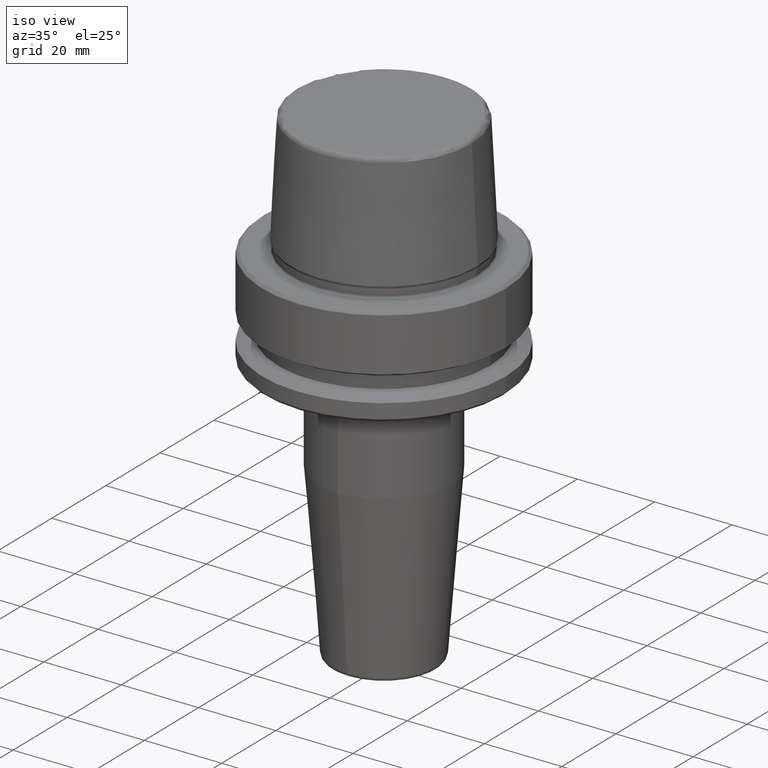
[diagram: clean part render]
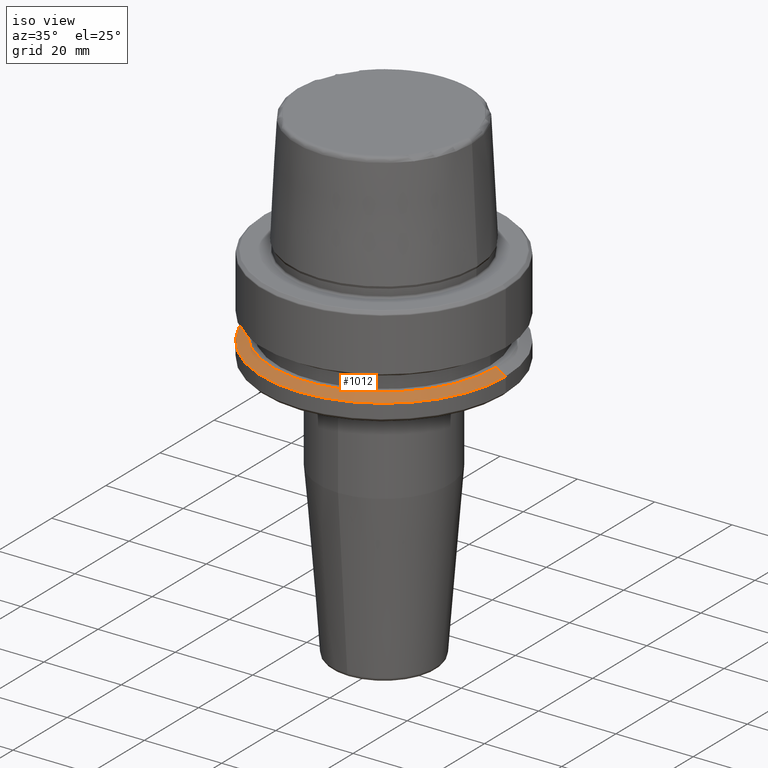
[diagram: same view with one face highlighted and labeled with its STEP entity id]
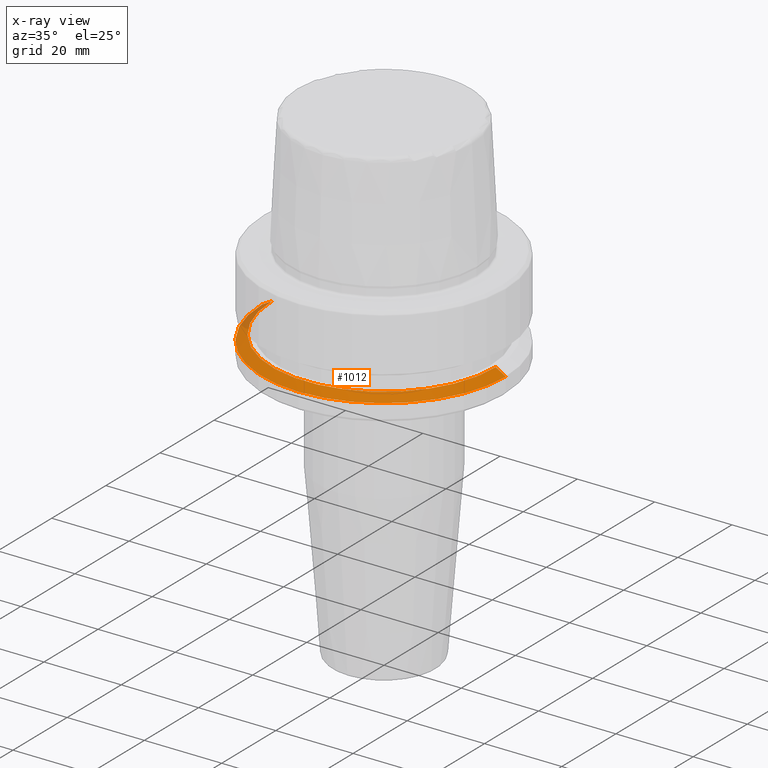
[diagram: x-ray of the same camera — body ghosted, the highlighted face saturated]
A machine part, iso view. The second image highlights one B-rep face of the part: STEP entity #1012.
The next image is the same camera in x-ray: the body ghosted, the highlighted face saturated — about 5% of this face is hidden behind the body in this view.
In plain terms, the highlighted conical surface has half-angle 60 deg.
Its self-contained STEP definition (entity closure, byte-faithful):
#20 = CARTESIAN_POINT ( 'NONE',  ( 31.50000000000000000, 3.857637417314162700E-015, -21.37749907475931700 ) ) ;
#54 = DIRECTION ( 'NONE',  ( -0.0000000000000000000, -0.0000000000000000000, 1.000000000000000000 ) ) ;
#72 = EDGE_CURVE ( 'NONE', #531, #137, #1248, .T. ) ;
#94 = ORIENTED_EDGE ( 'NONE', *, *, #1044, .T. ) ;
#137 = VERTEX_POINT ( 'NONE', #910 ) ;
#152 = ORIENTED_EDGE ( 'NONE', *, *, #468, .T. ) ;
#153 = DIRECTION ( 'NONE',  ( -0.8660254037844410400, 0.0000000000000000000, -0.4999999999999958400 ) ) ;
#220 = CARTESIAN_POINT ( 'NONE',  ( 0.0000000000000000000, 0.0000000000000000000, -21.37749907475931700 ) ) ;
#245 = ORIENTED_EDGE ( 'NONE', *, *, #72, .F. ) ;
#309 = DIRECTION ( 'NONE',  ( 1.000000000000000000, 0.0000000000000000000, 0.0000000000000000000 ) ) ;
#323 = CARTESIAN_POINT ( 'NONE',  ( -31.50000000000000000, 3.857637417314162700E-015, -21.37749907475931700 ) ) ;
#326 = LINE ( 'NONE', #20, #346 ) ;
#346 = VECTOR ( 'NONE', #1097, 1000.000000000000100 ) ;
#468 = EDGE_CURVE ( 'NONE', #531, #1162, #1255, .T. ) ;
#501 = VECTOR ( 'NONE', #153, 1000.000000000000100 ) ;
#506 = VERTEX_POINT ( 'NONE', #665 ) ;
#531 = VERTEX_POINT ( 'NONE', #727 ) ;
#579 = EDGE_CURVE ( 'NONE', #137, #506, #326, .T. ) ;
#594 = AXIS2_PLACEMENT_3D ( 'NONE', #1202, #1086, #1007 ) ;
#656 = FACE_OUTER_BOUND ( 'NONE', #1238, .T. ) ;
#665 = CARTESIAN_POINT ( 'NONE',  ( 31.50000000000000000, 0.0000000000000000000, -21.37749907475931700 ) ) ;
#670 = CARTESIAN_POINT ( 'NONE',  ( 0.0000000000000000000, 0.0000000000000000000, -19.90000000000001600 ) ) ;
#727 = CARTESIAN_POINT ( 'NONE',  ( -28.94089653438085100, 0.0000000000000000000, -19.90000000000001600 ) ) ;
#735 = CONICAL_SURFACE ( 'NONE', #594, 31.50000000000000000, 1.047197551196602500 ) ;
#764 = DIRECTION ( 'NONE',  ( 1.000000000000000000, 0.0000000000000000000, 0.0000000000000000000 ) ) ;
#797 = AXIS2_PLACEMENT_3D ( 'NONE', #220, #914, #309 ) ;
#854 = CARTESIAN_POINT ( 'NONE',  ( -31.50000000000000000, 0.0000000000000000000, -21.37749907475931700 ) ) ;
#893 = CIRCLE ( 'NONE', #797, 31.50000000000000000 ) ;
#910 = CARTESIAN_POINT ( 'NONE',  ( 28.94089653438085100, 3.700937523921292900E-015, -19.90000000000001600 ) ) ;
#914 = DIRECTION ( 'NONE',  ( -0.0000000000000000000, -0.0000000000000000000, 1.000000000000000000 ) ) ;
#930 = ORIENTED_EDGE ( 'NONE', *, *, #579, .F. ) ;
#1007 = DIRECTION ( 'NONE',  ( -1.000000000000000000, 0.0000000000000000000, 0.0000000000000000000 ) ) ;
#1012 = ADVANCED_FACE ( 'NONE', ( #656 ), #735, .T. ) ;
#1044 = EDGE_CURVE ( 'NONE', #1162, #506, #893, .T. ) ;
#1082 = AXIS2_PLACEMENT_3D ( 'NONE', #670, #54, #764 ) ;
#1086 = DIRECTION ( 'NONE',  ( 0.0000000000000000000, 0.0000000000000000000, -1.000000000000000000 ) ) ;
#1097 = DIRECTION ( 'NONE',  ( 0.8660254037844410400, 1.060575238724909700E-016, -0.4999999999999958400 ) ) ;
#1162 = VERTEX_POINT ( 'NONE', #323 ) ;
#1202 = CARTESIAN_POINT ( 'NONE',  ( 0.0000000000000000000, 0.0000000000000000000, -21.37749907475931700 ) ) ;
#1238 = EDGE_LOOP ( 'NONE', ( #930, #245, #152, #94 ) ) ;
#1248 = CIRCLE ( 'NONE', #1082, 28.94089653438085100 ) ;
#1255 = LINE ( 'NONE', #854, #501 ) ;